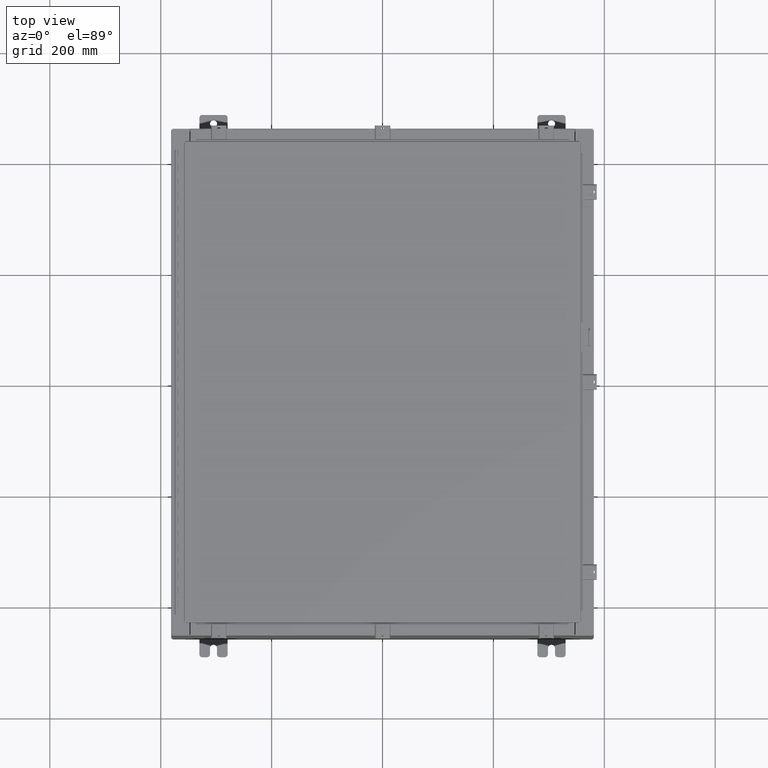
[diagram: clean part render]
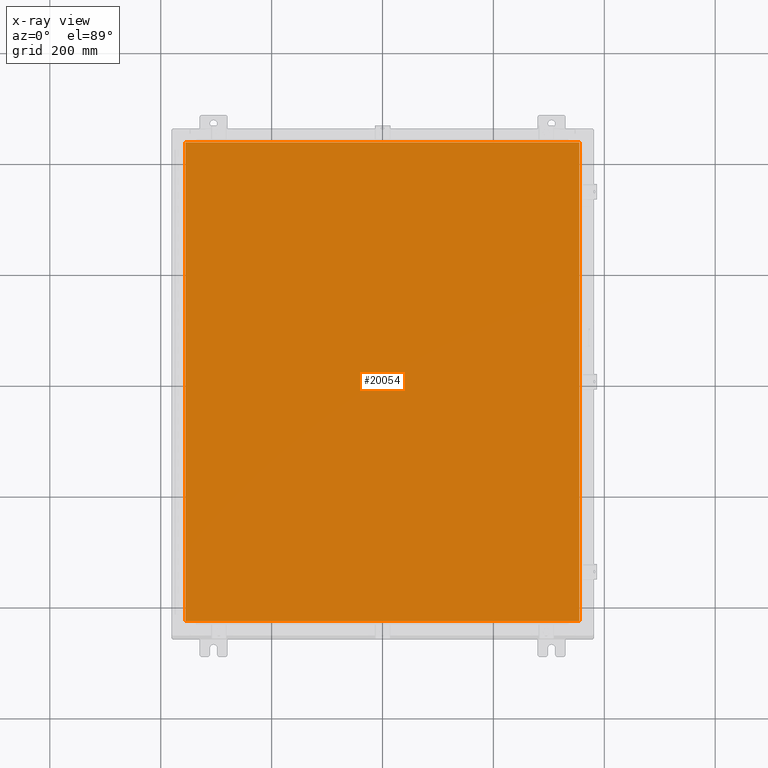
[diagram: x-ray — body ghosted, one internal face saturated and labeled with its STEP entity id]
A machine part, top view, then the same camera in x-ray: the body is ghosted and one INTERNAL B-rep face — a face not visible from any outside direction — is saturated and labeled: STEP entity #20054.
In plain terms, the highlighted planar face has unit normal (0, 0, -1).
Its self-contained STEP definition (entity closure, byte-faithful):
#2302 = ORIENTED_EDGE ( 'NONE', *, *, #17620, .F. ) ;
#3510 = LINE ( 'NONE', #20186, #20179 ) ;
#3611 = CARTESIAN_POINT ( 'NONE',  ( 13.99029999999999200, 17.00630000000000300, -0.07470000000000000300 ) ) ;
#7705 = VERTEX_POINT ( 'NONE', #31014 ) ;
#7734 = CARTESIAN_POINT ( 'NONE',  ( 0.0000000000000000000, 0.0000000000000000000, -0.07470000000000000300 ) ) ;
#7878 = VECTOR ( 'NONE', #35410, 39.37007874015748100 ) ;
#8919 = LINE ( 'NONE', #25238, #7878 ) ;
#10060 = FACE_OUTER_BOUND ( 'NONE', #29707, .T. ) ;
#13839 = DIRECTION ( 'NONE',  ( -1.000000000000000000, 0.0000000000000000000, -0.0000000000000000000 ) ) ;
#16374 = LINE ( 'NONE', #18640, #24213 ) ;
#17481 = LINE ( 'NONE', #37725, #27387 ) ;
#17620 = EDGE_CURVE ( 'NONE', #38041, #22842, #3510, .T. ) ;
#18640 = CARTESIAN_POINT ( 'NONE',  ( -13.99030000000000700, -17.00630000000000000, -0.07470000000000019700 ) ) ;
#19399 = EDGE_CURVE ( 'NONE', #26473, #38041, #16374, .T. ) ;
#20054 = ADVANCED_FACE ( 'NONE', ( #10060 ), #20851, .T. ) ;
#20179 = VECTOR ( 'NONE', #35985, 39.37007874015748100 ) ;
#20186 = CARTESIAN_POINT ( 'NONE',  ( 13.99029999999999200, -17.00630000000000000, -0.07470000000000019700 ) ) ;
#20851 = PLANE ( 'NONE',  #28898 ) ;
#22842 = VERTEX_POINT ( 'NONE', #3611 ) ;
#23479 = EDGE_CURVE ( 'NONE', #7705, #26473, #8919, .T. ) ;
#24213 = VECTOR ( 'NONE', #28563, 39.37007874015748100 ) ;
#25238 = CARTESIAN_POINT ( 'NONE',  ( -13.99030000000000700, 17.00630000000000000, -0.07470000000000019700 ) ) ;
#26473 = VERTEX_POINT ( 'NONE', #35764 ) ;
#27387 = VECTOR ( 'NONE', #30863, 39.37007874015748100 ) ;
#27495 = EDGE_CURVE ( 'NONE', #22842, #7705, #17481, .T. ) ;
#28563 = DIRECTION ( 'NONE',  ( 1.000000000000000000, -0.0000000000000000000, -0.0000000000000000000 ) ) ;
#28898 = AXIS2_PLACEMENT_3D ( 'NONE', #7734, #34563, #13839 ) ;
#29707 = EDGE_LOOP ( 'NONE', ( #2302, #36832, #43023, #38955 ) ) ;
#30863 = DIRECTION ( 'NONE',  ( -1.000000000000000000, -0.0000000000000000000, -0.0000000000000000000 ) ) ;
#31014 = CARTESIAN_POINT ( 'NONE',  ( -13.99030000000000700, 17.00630000000000300, -0.07470000000000000300 ) ) ;
#34563 = DIRECTION ( 'NONE',  ( 0.0000000000000000000, 0.0000000000000000000, -1.000000000000000000 ) ) ;
#35410 = DIRECTION ( 'NONE',  ( 0.0000000000000000000, -1.000000000000000000, 0.0000000000000000000 ) ) ;
#35666 = CARTESIAN_POINT ( 'NONE',  ( 13.99029999999999200, -17.00630000000000000, -0.07470000000000000300 ) ) ;
#35764 = CARTESIAN_POINT ( 'NONE',  ( -13.99030000000000700, -17.00630000000000000, -0.07470000000000000300 ) ) ;
#35985 = DIRECTION ( 'NONE',  ( 0.0000000000000000000, 1.000000000000000000, 0.0000000000000000000 ) ) ;
#36832 = ORIENTED_EDGE ( 'NONE', *, *, #19399, .F. ) ;
#37725 = CARTESIAN_POINT ( 'NONE',  ( 13.99029999999999200, 17.00630000000000300, -0.07470000000000129300 ) ) ;
#38041 = VERTEX_POINT ( 'NONE', #35666 ) ;
#38955 = ORIENTED_EDGE ( 'NONE', *, *, #27495, .F. ) ;
#43023 = ORIENTED_EDGE ( 'NONE', *, *, #23479, .F. ) ;